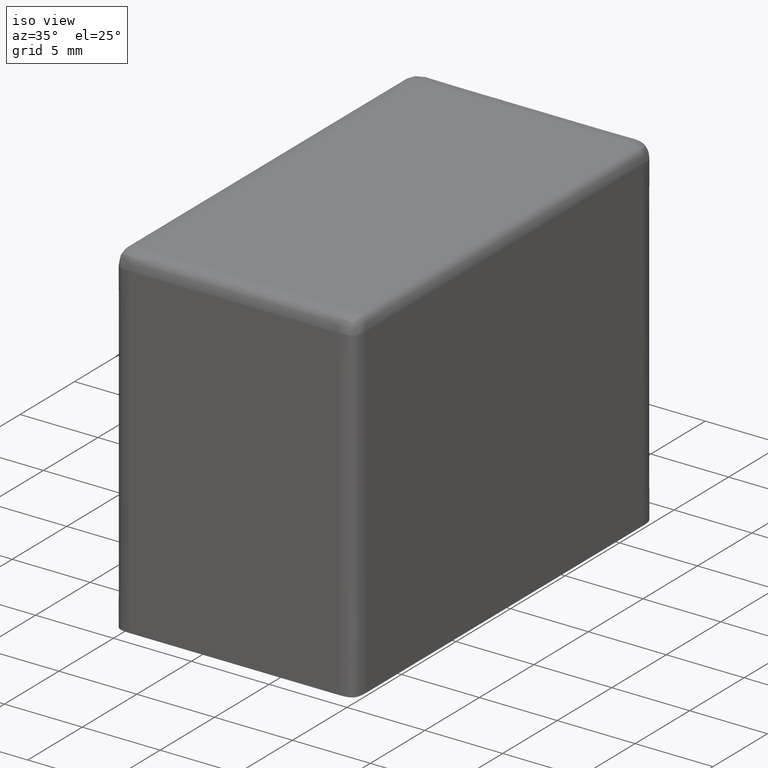
[diagram: clean part render]
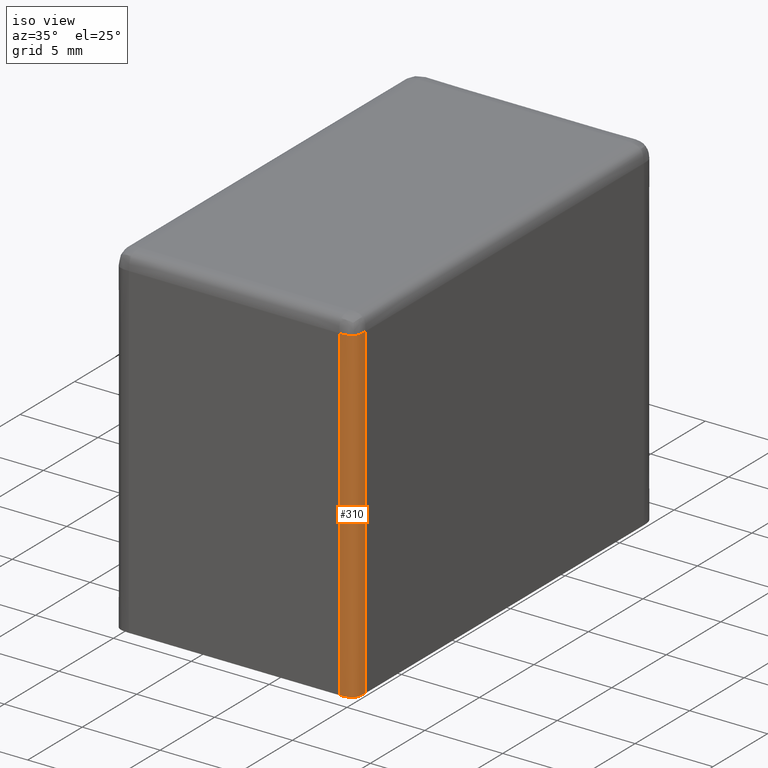
[diagram: same view with one face highlighted and labeled with its STEP entity id]
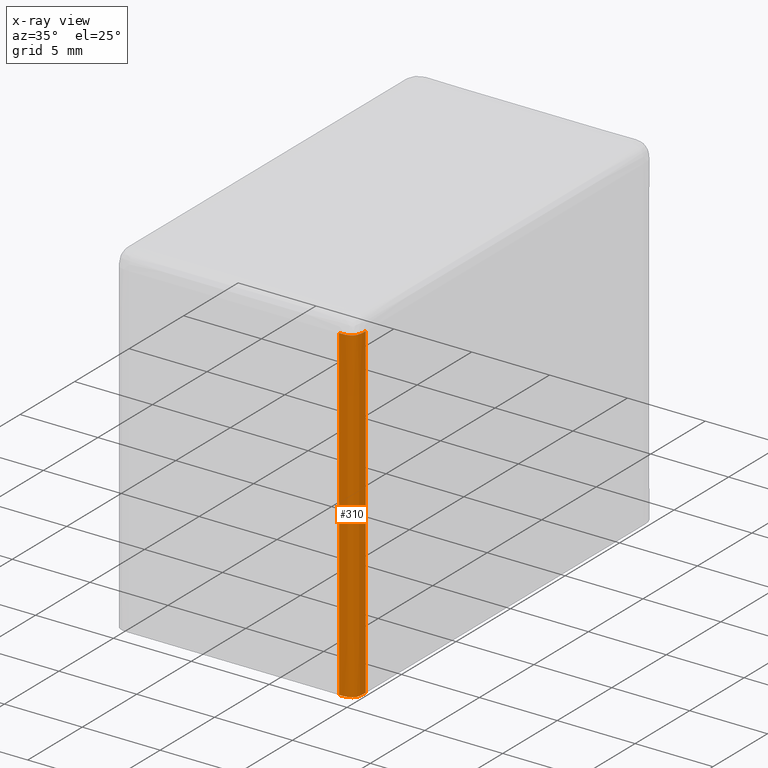
[diagram: x-ray of the same camera — body ghosted, the highlighted face saturated]
A machine part, iso view. The second image highlights one B-rep face of the part: STEP entity #310.
The next image is the same camera in x-ray: the body ghosted, the highlighted face saturated — about 0% of this face is hidden behind the body in this view.
In plain terms, the highlighted face is a freeform B-spline surface patch.
Its self-contained STEP definition (entity closure, byte-faithful):
#10 = VERTEX_POINT ( 'NONE', #218 ) ;
#12 = CARTESIAN_POINT ( 'NONE',  ( 14.92796773473571800, 0.03392328364386529300, -22.00000000000000000 ) ) ;
#18 = CARTESIAN_POINT ( 'NONE',  ( 14.50000000000000900, 0.0000000000000000000, -1.000000000000000000 ) ) ;
#89 = CARTESIAN_POINT ( 'NONE',  ( 14.92195990358890600, 0.03275341870660460800, -21.99999999999999600 ) ) ;
#90 = CARTESIAN_POINT ( 'NONE',  ( 15.47690747893944700, 0.6338777684587885200, -22.00000000000000700 ) ) ;
#99 = CARTESIAN_POINT ( 'NONE',  ( 15.09044807097110300, 0.07888791023231928000, -22.00000000000000400 ) ) ;
#106 = CARTESIAN_POINT ( 'NONE',  ( 15.04389050095700300, 0.06210524771872363200, -21.99999999999999600 ) ) ;
#119 = EDGE_LOOP ( 'NONE', ( #536, #2653, #2101, #3127, #952 ) ) ;
#128 = CARTESIAN_POINT ( 'NONE',  ( 15.42113883093678700, 0.4115075020712722900, -22.00000000000000400 ) ) ;
#143 = CARTESIAN_POINT ( 'NONE',  ( 15.45493331000333000, 0.5130587434306024300, -1.000000000000000700 ) ) ;
#218 = CARTESIAN_POINT ( 'NONE',  ( 15.50000000000000000, 1.000000000000000000, -22.00000000000000000 ) ) ;
#230 = CARTESIAN_POINT ( 'NONE',  ( 15.50000000000000000, 0.9999999999999945600, -1.000000000000000000 ) ) ;
#253 = CARTESIAN_POINT ( 'NONE',  ( 15.50000000000000000, 1.000000000000000000, -22.00000000000000000 ) ) ;
#310 = ADVANCED_FACE ( 'NONE', ( #3149 ), #2732, .T. ) ;
#314 = CARTESIAN_POINT ( 'NONE',  ( 14.78061856605094900, 0.005963780235575737000, -1.000000000000000400 ) ) ;
#338 = CARTESIAN_POINT ( 'NONE',  ( 14.80594846349609000, 0.01069499386338116200, -22.00000000000000400 ) ) ;
#339 = CARTESIAN_POINT ( 'NONE',  ( 15.47270695763541500, 0.6081550272228167800, -22.00000000000000000 ) ) ;
#432 = CARTESIAN_POINT ( 'NONE',  ( 14.50000000000000000, 0.0000000000000000000, -22.00000000000000000 ) ) ;
#536 = ORIENTED_EDGE ( 'NONE', *, *, #2459, .F. ) ;
#584 = CARTESIAN_POINT ( 'NONE',  ( 15.50000000000000000, 1.000000000000000000, -22.00000000000000000 ) ) ;
#605 = CARTESIAN_POINT ( 'NONE',  ( 15.47081361921513200, 0.5973620524048506300, -22.00000000000000400 ) ) ;
#606 = CARTESIAN_POINT ( 'NONE',  ( 15.50000000000000000, 1.000000000000000000, -15.03333333333333100 ) ) ;
#621 = CARTESIAN_POINT ( 'NONE',  ( 15.50000000000000200, 0.0000000000000000000, -15.03333333333333300 ) ) ;
#623 = EDGE_CURVE ( 'NONE', #2093, #10, #3141, .T. ) ;
#733 = CARTESIAN_POINT ( 'NONE',  ( 15.29289321881345600, 0.2071067811865474900, -1.000000000000001300 ) ) ;
#763 = VERTEX_POINT ( 'NONE', #18 ) ;
#804 = CARTESIAN_POINT ( 'NONE',  ( 14.50000000000000900, 0.0000000000000000000, -1.000000000000000000 ) ) ;
#828 = CARTESIAN_POINT ( 'NONE',  ( 15.50000000000000200, 0.0000000000000000000, -6.966666666666662300 ) ) ;
#839 = CARTESIAN_POINT ( 'NONE',  ( 15.49999999999999500, 0.9173806044219662300, -22.00000000000000000 ) ) ;
#847 = CARTESIAN_POINT ( 'NONE',  ( 15.23034517245537600, 0.1516328620193898300, -22.00000000000000000 ) ) ;
#883 = CARTESIAN_POINT ( 'NONE',  ( 15.43654456802039100, 0.4450348550873382000, -1.000000000000000900 ) ) ;
#901 = B_SPLINE_CURVE_WITH_KNOTS ( 'NONE', 3,
 ( #584, #839, #2584, #2862, #90, #339, #605, #1637, #2877, #1374, #2100, #2634, #128, #1134, #3120, #1855, #1388, #1088, #847, #1612, #2596, #1600, #1901, #99, #106, #1866, #1875, #975, #12, #89, #338, #1682, #432 ),
 .UNSPECIFIED., .F., .F.,
 ( 4, 1, 1, 1, 1, 2, 2, 1, 1, 2, 2, 2, 1, 1, 2, 2, 1, 1, 1, 2, 2, 4 ),
 ( 0.0000000000000000000, 0.1249999999999922600, 0.1874999999999883100, 0.2187499999999862300, 0.2343749999999851800, 0.2421874999999846500, 0.2499999999999841500, 0.3124999999999765200, 0.3437499999999726300, 0.3593749999999702500, 0.3749999999999678600, 0.4999999999999460400, 0.5624999999999339400, 0.5937499999999279500, 0.6093749999999249500, 0.6249999999999219500, 0.6874999999999194000, 0.7187499999999197300, 0.7343749999999198400, 0.7421874999999199500, 0.7499999999999200600, 1.000000000000000000 ),
 .UNSPECIFIED. ) ;
#918 = CARTESIAN_POINT ( 'NONE',  ( 15.29289321881345600, 0.2071067811865474900, -1.000000000000001300 ) ) ;
#930 = CARTESIAN_POINT ( 'NONE',  ( 15.33973143606189600, 0.2592343929106641900, -1.000000000000000900 ) ) ;
#948 = CARTESIAN_POINT ( 'NONE',  ( 15.50000000000000000, 0.9999999999999945600, -1.000000000000000000 ) ) ;
#952 = ORIENTED_EDGE ( 'NONE', *, *, #2550, .F. ) ;
#975 = CARTESIAN_POINT ( 'NONE',  ( 14.93737848528019900, 0.03582278623153691700, -22.00000000000000700 ) ) ;
#1050 = CARTESIAN_POINT ( 'NONE',  ( 15.18228970793891700, 0.1217923441640642200, -1.000000000000000700 ) ) ;
#1081 = CARTESIAN_POINT ( 'NONE',  ( 14.63999359471908200, 0.0000000000000000000, -1.000000000000000400 ) ) ;
#1088 = CARTESIAN_POINT ( 'NONE',  ( 15.26978804501038700, 0.1838954133443707600, -22.00000000000000000 ) ) ;
#1098 = CARTESIAN_POINT ( 'NONE',  ( 15.50000000000000200, 0.0000000000000000000, -23.09999999999999800 ) ) ;
#1134 = CARTESIAN_POINT ( 'NONE',  ( 15.41518501062500900, 0.3964129594024467000, -22.00000000000000400 ) ) ;
#1149 = CARTESIAN_POINT ( 'NONE',  ( 15.49403608941044700, 0.7193806565983009700, -1.000000000000000400 ) ) ;
#1212 = CARTESIAN_POINT ( 'NONE',  ( 14.50000000000000900, 0.0000000000000000000, -1.000000000000000000 ) ) ;
#1337 = CARTESIAN_POINT ( 'NONE',  ( 15.24076552153977500, 0.1602684935114924400, -1.000000000000001100 ) ) ;
#1350 = CARTESIAN_POINT ( 'NONE',  ( 15.05496632274774500, 0.06345589294292594600, -1.000000000000000900 ) ) ;
#1354 = CARTESIAN_POINT ( 'NONE',  ( 14.49999999999999800, 0.0000000000000000000, -15.03333333333333100 ) ) ;
#1374 = CARTESIAN_POINT ( 'NONE',  ( 15.46105588128725800, 0.5450770158804376700, -22.00000000000000400 ) ) ;
#1388 = CARTESIAN_POINT ( 'NONE',  ( 15.34043363313395100, 0.2548612535819922400, -22.00000000000000000 ) ) ;
#1423 = CARTESIAN_POINT ( 'NONE',  ( 15.50000000000000400, 0.8600049047195356100, -1.000000000000000200 ) ) ;
#1494 = CARTESIAN_POINT ( 'NONE',  ( 14.50000000000000000, 0.0000000000000000000, -22.00000000000000000 ) ) ;
#1577 = CARTESIAN_POINT ( 'NONE',  ( 15.29289321881345600, 0.2071067811865474900, -1.000000000000001300 ) ) ;
#1593 = CARTESIAN_POINT ( 'NONE',  ( 15.50000000000000000, 1.000000000000000000, -23.09999999999999800 ) ) ;
#1600 = CARTESIAN_POINT ( 'NONE',  ( 15.13618080293296100, 0.09904996031321441900, -22.00000000000000000 ) ) ;
#1605 = VERTEX_POINT ( 'NONE', #733 ) ;
#1612 = CARTESIAN_POINT ( 'NONE',  ( 15.17711835044471000, 0.1196288641961147000, -22.00000000000000000 ) ) ;
#1615 = CARTESIAN_POINT ( 'NONE',  ( 15.50000000000000000, 1.000000000000000000, -6.966666666666662300 ) ) ;
#1637 = CARTESIAN_POINT ( 'NONE',  ( 15.46953070137842800, 0.5902180818907190000, -21.99999999999999600 ) ) ;
#1662 = CARTESIAN_POINT ( 'NONE',  ( 14.50000000000000000, 0.0000000000000000000, -22.00000000000000000 ) ) ;
#1682 = CARTESIAN_POINT ( 'NONE',  ( 14.66646699502799900, -1.792886405022180600E-017, -22.00000000000000400 ) ) ;
#1855 = CARTESIAN_POINT ( 'NONE',  ( 15.37932596728482300, 0.3132717579867096400, -21.99999999999999600 ) ) ;
#1866 = CARTESIAN_POINT ( 'NONE',  ( 14.98326892387062500, 0.04595270468737418900, -22.00000000000000000 ) ) ;
#1875 = CARTESIAN_POINT ( 'NONE',  ( 14.95138203230994700, 0.03873324064699391900, -22.00000000000000000 ) ) ;
#1901 = CARTESIAN_POINT ( 'NONE',  ( 15.12624394499715300, 0.09450547656563833300, -22.00000000000000000 ) ) ;
#1925 = CARTESIAN_POINT ( 'NONE',  ( 14.49999999999999800, 0.0000000000000000000, -15.00000000000000400 ) ) ;
#2071 = CARTESIAN_POINT ( 'NONE',  ( 14.98694141413367500, 0.04506671137276908900, -1.000000000000000400 ) ) ;
#2093 = VERTEX_POINT ( 'NONE', #948 ) ;
#2100 = CARTESIAN_POINT ( 'NONE',  ( 15.44828025253460300, 0.4913451422968877500, -22.00000000000000400 ) ) ;
#2101 = ORIENTED_EDGE ( 'NONE', *, *, #3160, .F. ) ;
#2125 = CARTESIAN_POINT ( 'NONE',  ( 15.50000000000000200, 0.0000000000000000000, 1.100000000000000100 ) ) ;
#2132 = B_SPLINE_CURVE_WITH_KNOTS ( 'NONE', 3,
 ( #804, #1081, #314, #2071, #1350, #2837, #1050, #1337, #3060, #1577 ),
 .UNSPECIFIED., .F., .F.,
 ( 4, 2, 2, 2, 4 ),
 ( 0.0000000000000000000, 0.5000000000000000000, 0.7500000000000000000, 0.8750000000000000000, 1.000000000000000000 ),
 .UNSPECIFIED. ) ;
#2294 = EDGE_CURVE ( 'NONE', #763, #1605, #2132, .T. ) ;
#2331 = CARTESIAN_POINT ( 'NONE',  ( 14.49999999999999800, 0.0000000000000000000, -6.966666666666662300 ) ) ;
#2354 = B_SPLINE_CURVE_WITH_KNOTS ( 'NONE', 3,
 ( #1662, #1925, #2647, #1212 ),
 .UNSPECIFIED., .F., .F.,
 ( 4, 4 ),
 ( 0.0000000000000000000, 1.000000000000000000 ),
 .UNSPECIFIED. ) ;
#2388 = CARTESIAN_POINT ( 'NONE',  ( 15.39461766116859200, 0.3487702021774570200, -1.000000000000000900 ) ) ;
#2415 = CARTESIAN_POINT ( 'NONE',  ( 15.37820752236086400, 0.3177100677222398600, -1.000000000000001300 ) ) ;
#2459 = EDGE_CURVE ( 'NONE', #10, #2836, #901, .T. ) ;
#2550 = EDGE_CURVE ( 'NONE', #2836, #763, #2354, .T. ) ;
#2575 = CARTESIAN_POINT ( 'NONE',  ( 14.49999999999999800, 0.0000000000000000000, 1.100000000000000100 ) ) ;
#2584 = CARTESIAN_POINT ( 'NONE',  ( 15.49602709315087200, 0.8033099490413607700, -21.99999999999999600 ) ) ;
#2596 = CARTESIAN_POINT ( 'NONE',  ( 15.15276182586232200, 0.1071205034266830300, -22.00000000000000000 ) ) ;
#2634 = CARTESIAN_POINT ( 'NONE',  ( 15.42981526979530600, 0.4345717283533642700, -21.99999999999999600 ) ) ;
#2647 = CARTESIAN_POINT ( 'NONE',  ( 14.50000000000000200, 0.0000000000000000000, -8.000000000000001800 ) ) ;
#2653 = ORIENTED_EDGE ( 'NONE', *, *, #623, .F. ) ;
#2683 = CARTESIAN_POINT ( 'NONE',  ( 15.31764152191662200, 0.2318550842897192100, -1.000000000000003600 ) ) ;
#2687 = B_SPLINE_CURVE_WITH_KNOTS ( 'NONE', 3,
 ( #918, #2683, #930, #2415, #2388, #883, #143, #1149, #1423, #2879 ),
 .UNSPECIFIED., .F., .F.,
 ( 4, 2, 2, 2, 4 ),
 ( 0.0000000000000000000, 0.1250000000000000000, 0.2500000000000000000, 0.5000000000000000000, 1.000000000000000000 ),
 .UNSPECIFIED. ) ;
#2732 =( BOUNDED_SURFACE ( )  B_SPLINE_SURFACE ( 2, 3, ( 
 ( #3091, #1615, #606, #1593 ),
 ( #2125, #828, #621, #1098 ),
 ( #2575, #2331, #1354, #3079 ) ),
 .UNSPECIFIED., .F., .F., .F. ) 
 B_SPLINE_SURFACE_WITH_KNOTS ( ( 3, 3 ),
 ( 4, 4 ),
 ( 0.0000000000000000000, 1.000000000000000000 ),
 ( -0.001100000000000000100, 0.02309999999999999900 ),
 .UNSPECIFIED. ) 
 GEOMETRIC_REPRESENTATION_ITEM ( )  RATIONAL_B_SPLINE_SURFACE ( (
 ( 1.000000000000000000, 1.000000000000000000, 1.000000000000000000, 1.000000000000000000),
 ( 1.414213562373095800, 1.414213562373095800, 1.414213562373095800, 1.414213562373095800),
 ( 1.000000000000000000, 1.000000000000000000, 1.000000000000000000, 1.000000000000000000) ) ) 
 REPRESENTATION_ITEM ( '' )  SURFACE ( )  );
#2836 = VERTEX_POINT ( 'NONE', #1494 ) ;
#2837 = CARTESIAN_POINT ( 'NONE',  ( 15.15122986481958400, 0.1053823940256887100, -1.000000000000001300 ) ) ;
#2862 = CARTESIAN_POINT ( 'NONE',  ( 15.48443944817424800, 0.6874797842402661200, -22.00000000000000400 ) ) ;
#2877 = CARTESIAN_POINT ( 'NONE',  ( 15.46911185319694400, 0.5879103947412218600, -22.00000000000000400 ) ) ;
#2879 = CARTESIAN_POINT ( 'NONE',  ( 15.50000000000000000, 0.9999999999999945600, -1.000000000000000000 ) ) ;
#3008 = CARTESIAN_POINT ( 'NONE',  ( 15.50000000000000000, 1.000000000000000000, -8.000000000000001800 ) ) ;
#3060 = CARTESIAN_POINT ( 'NONE',  ( 15.26814491571028200, 0.1823584780833760200, -0.9999999999999995600 ) ) ;
#3079 = CARTESIAN_POINT ( 'NONE',  ( 14.49999999999999800, 0.0000000000000000000, -23.09999999999999800 ) ) ;
#3091 = CARTESIAN_POINT ( 'NONE',  ( 15.50000000000000000, 1.000000000000000000, 1.100000000000000100 ) ) ;
#3120 = CARTESIAN_POINT ( 'NONE',  ( 15.41268326513151600, 0.3902994628906955000, -22.00000000000000400 ) ) ;
#3127 = ORIENTED_EDGE ( 'NONE', *, *, #2294, .F. ) ;
#3141 = B_SPLINE_CURVE_WITH_KNOTS ( 'NONE', 3,
 ( #230, #3008, #3246, #253 ),
 .UNSPECIFIED., .F., .F.,
 ( 4, 4 ),
 ( 0.0000000000000000000, 1.000000000000000000 ),
 .UNSPECIFIED. ) ;
#3149 = FACE_OUTER_BOUND ( 'NONE', #119, .T. ) ;
#3160 = EDGE_CURVE ( 'NONE', #1605, #2093, #2687, .T. ) ;
#3246 = CARTESIAN_POINT ( 'NONE',  ( 15.50000000000000000, 1.000000000000000000, -15.00000000000000400 ) ) ;